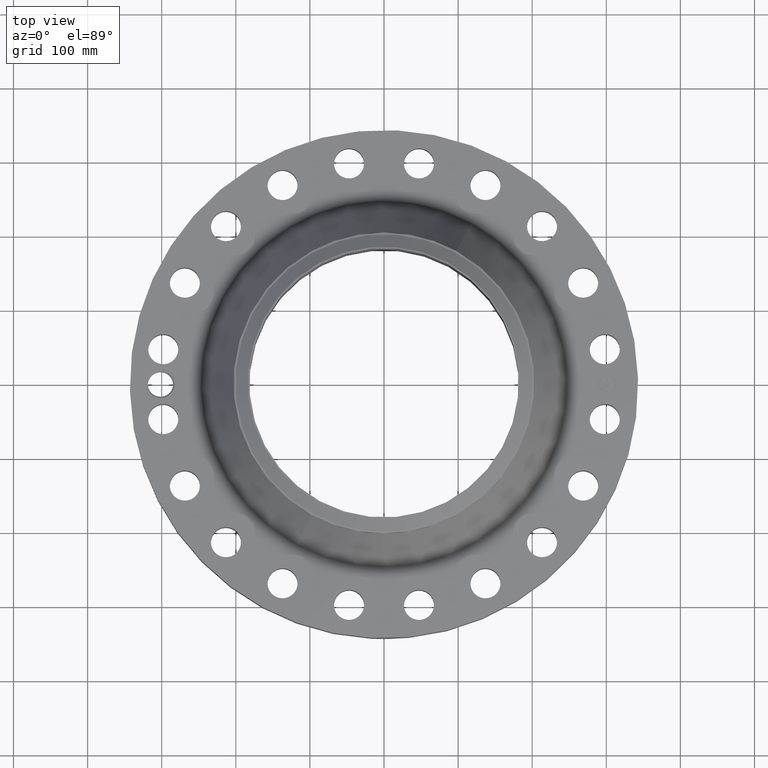
[diagram: clean part render]
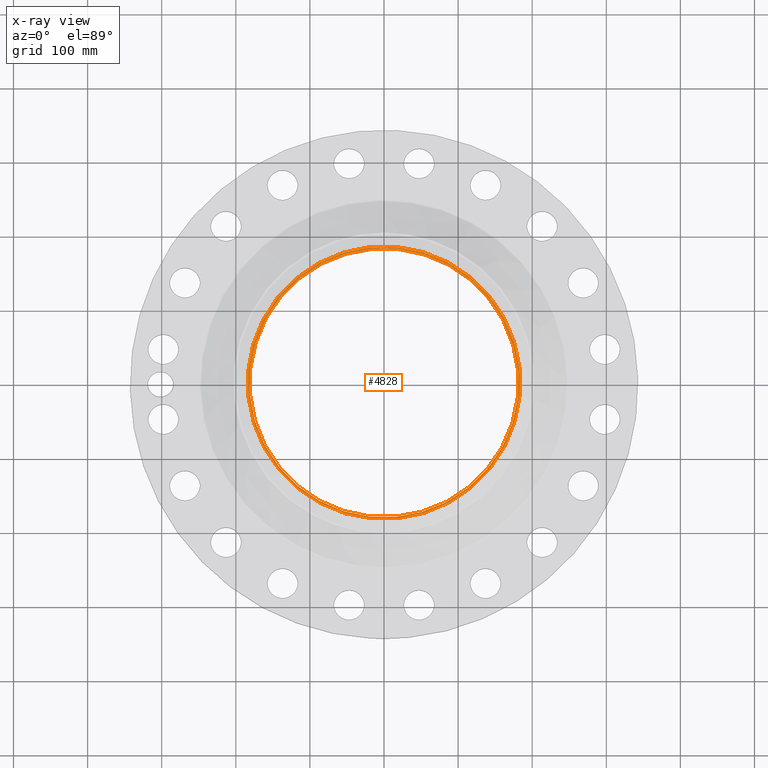
[diagram: x-ray — body ghosted, one internal face saturated and labeled with its STEP entity id]
A machine part, top view, then the same camera in x-ray: the body is ghosted and one INTERNAL B-rep face — a face not visible from any outside direction — is saturated and labeled: STEP entity #4828.
In plain terms, the highlighted planar face has unit normal (0, 0, -1).
Its self-contained STEP definition (entity closure, byte-faithful):
#3623=AXIS2_PLACEMENT_3D('Circle Axis2P3D',#3621,#3622,$) ;
#3691=AXIS2_PLACEMENT_3D('Circle Axis2P3D',#3689,#3690,$) ;
#4804=AXIS2_PLACEMENT_3D('Plane Axis2P3D',#4801,#4802,#4803) ;
#4808=AXIS2_PLACEMENT_3D('Circle Axis2P3D',#4806,#4807,$) ;
#4817=AXIS2_PLACEMENT_3D('Circle Axis2P3D',#4815,#4816,$) ;
#3621=CARTESIAN_POINT('Axis2P3D Location',(0.,0.,7.25000000003)) ;
#3625=CARTESIAN_POINT('Vertex',(3.43076915427,6.27998081291,7.25000000003)) ;
#3627=CARTESIAN_POINT('Vertex',(-3.43076915427,-6.27998081291,7.25000000003)) ;
#3689=CARTESIAN_POINT('Axis2P3D Location',(0.,0.,7.25000000003)) ;
#4801=CARTESIAN_POINT('Axis2P3D Location',(0.,8.00000000003,7.25000000003)) ;
#4806=CARTESIAN_POINT('Axis2P3D Location',(0.,0.,7.25000000003)) ;
#4810=CARTESIAN_POINT('Vertex',(3.46851919668,-6.34908180204,7.25000000003)) ;
#4812=CARTESIAN_POINT('Vertex',(-3.46851919668,6.34908180204,7.25000000003)) ;
#4815=CARTESIAN_POINT('Axis2P3D Location',(0.,0.,7.25000000003)) ;
#3622=DIRECTION('Axis2P3D Direction',(0.,0.,-0.0393700787402)) ;
#3690=DIRECTION('Axis2P3D Direction',(0.,0.,-0.0393700787402)) ;
#4802=DIRECTION('Axis2P3D Direction',(0.,0.,-0.0393700787402)) ;
#4803=DIRECTION('Axis2P3D XDirection',(0.0393700787402,0.,0.)) ;
#4807=DIRECTION('Axis2P3D Direction',(0.,0.,-0.0393700787402)) ;
#4816=DIRECTION('Axis2P3D Direction',(0.,0.,-0.0393700787402)) ;
#4821=ORIENTED_EDGE('',*,*,#4814,.T.) ;
#4822=ORIENTED_EDGE('',*,*,#4819,.T.) ;
#4825=ORIENTED_EDGE('',*,*,#3693,.T.) ;
#4826=ORIENTED_EDGE('',*,*,#3629,.T.) ;
#4827=FACE_BOUND('',#4824,.T.) ;
#4828=ADVANCED_FACE('PartBody',(#4823,#4827),#4805,.F.) ;
#3624=CIRCLE('generated circle',#3623,7.15600000003) ;
#3692=CIRCLE('generated circle',#3691,7.15600000003) ;
#4809=CIRCLE('generated circle',#4808,7.23474015751) ;
#4818=CIRCLE('generated circle',#4817,7.23474015751) ;
#3629=EDGE_CURVE('',#3626,#3628,#3624,.T.) ;
#3693=EDGE_CURVE('',#3628,#3626,#3692,.T.) ;
#4814=EDGE_CURVE('',#4811,#4813,#4809,.F.) ;
#4819=EDGE_CURVE('',#4813,#4811,#4818,.F.) ;
#4820=EDGE_LOOP('',(#4821,#4822)) ;
#4824=EDGE_LOOP('',(#4825,#4826)) ;
#4823=FACE_OUTER_BOUND('',#4820,.T.) ;
#4805=PLANE('',#4804) ;
#3626=VERTEX_POINT('',#3625) ;
#3628=VERTEX_POINT('',#3627) ;
#4811=VERTEX_POINT('',#4810) ;
#4813=VERTEX_POINT('',#4812) ;